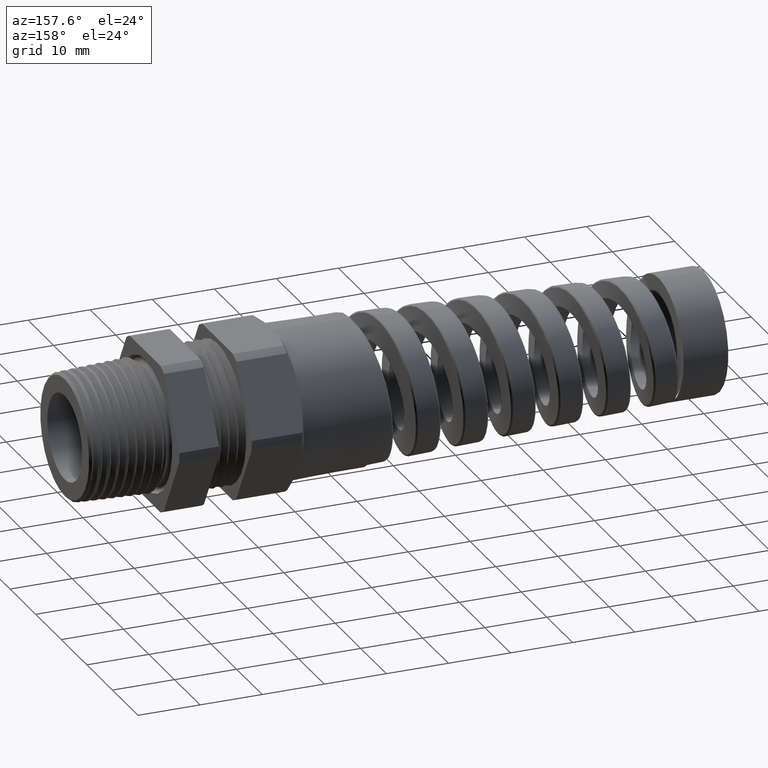
[diagram: clean part render]
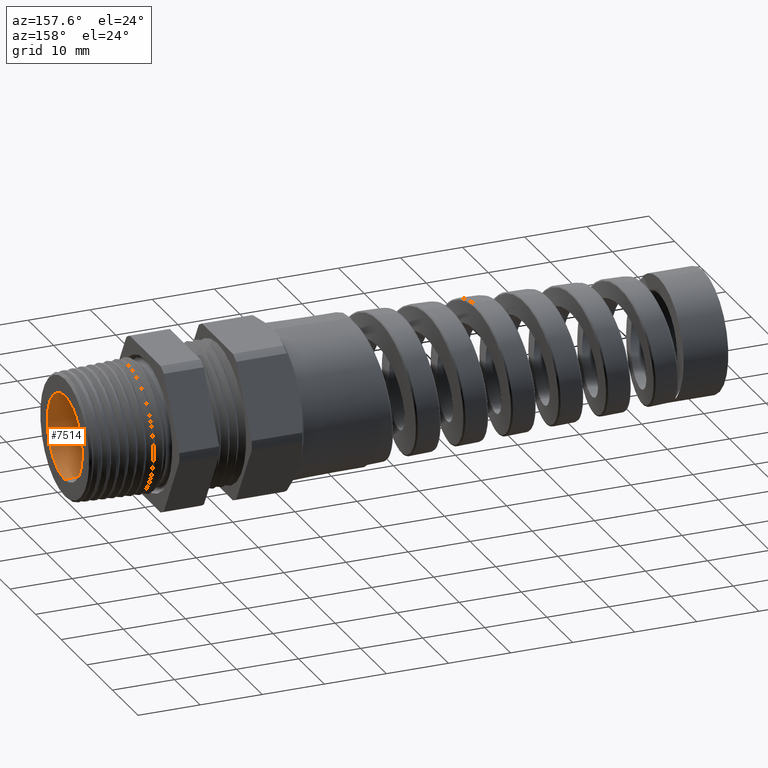
[diagram: same view with one face highlighted and labeled with its STEP entity id]
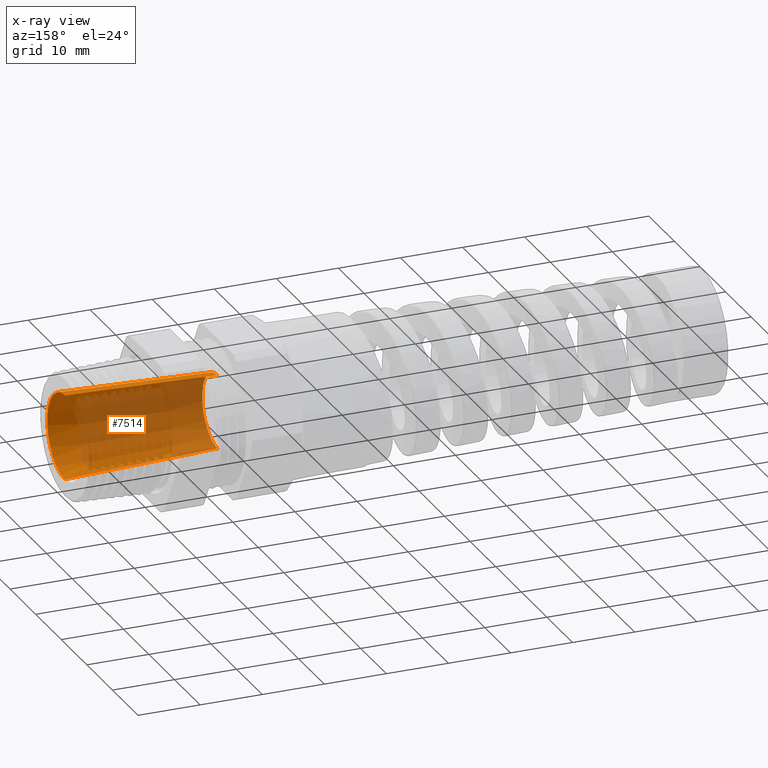
[diagram: x-ray of the same camera — body ghosted, the highlighted face saturated]
A machine part, auxiliary view. The second image highlights one B-rep face of the part: STEP entity #7514.
The next image is the same camera in x-ray: the body ghosted, the highlighted face saturated — about 72% of this face is hidden behind the body in this view.
In plain terms, the highlighted conical surface has half-angle 2 deg.
Its self-contained STEP definition (entity closure, byte-faithful):
#7502 = EDGE_CURVE ( 'NONE', #7522, #7503, #10307, .T. ) ;
#7503 = VERTEX_POINT ( 'NONE', #10298 ) ;
#7504 = ORIENTED_EDGE ( 'NONE', *, *, #7502, .F. ) ;
#7505 = ORIENTED_EDGE ( 'NONE', *, *, #7510, .F. ) ;
#7510 = EDGE_CURVE ( 'NONE', #7503, #7511, #10356, .T. ) ;
#7511 = VERTEX_POINT ( 'NONE', #10352 ) ;
#7513 = EDGE_LOOP ( 'NONE', ( #7516, #7517, #7505, #7504 ) ) ;
#7514 = ADVANCED_FACE ( 'NONE', ( #10351 ), #10349, .F. ) ;
#7515 = EDGE_CURVE ( 'NONE', #7521, #7511, #10345, .T. ) ;
#7516 = ORIENTED_EDGE ( 'NONE', *, *, #7535, .T. ) ;
#7517 = ORIENTED_EDGE ( 'NONE', *, *, #7515, .T. ) ;
#7521 = VERTEX_POINT ( 'NONE', #10341 ) ;
#7522 = VERTEX_POINT ( 'NONE', #10340 ) ;
#7535 = EDGE_CURVE ( 'NONE', #7522, #7521, #10383, .T. ) ;
#10297 = CARTESIAN_POINT ( 'NONE',  ( 0.5100000000000000100, 0.0000000000000000000, 0.0000000000000000000 ) ) ;
#10298 = CARTESIAN_POINT ( 'NONE',  ( 0.5100000000000000100, 0.0000000000000000000, -0.2688440457657528800 ) ) ;
#10299 = DIRECTION ( 'NONE',  ( 0.9993908270190957600, 0.0000000000000000000, -0.03489949670250170500 ) ) ;
#10300 = VECTOR ( 'NONE', #10299, 39.37007874015748900 ) ;
#10301 = CARTESIAN_POINT ( 'NONE',  ( -0.4591666666666666700, 0.0000000000000000000, -0.2349999999999999900 ) ) ;
#10307 = LINE ( 'NONE', #10301, #10300 ) ;
#10340 = CARTESIAN_POINT ( 'NONE',  ( -0.4591666666666666700, 0.0000000000000000000, -0.2349999999999999900 ) ) ;
#10341 = CARTESIAN_POINT ( 'NONE',  ( -0.4591666666666666700, 3.085154989582409200E-017, 0.2349999999999999900 ) ) ;
#10342 = DIRECTION ( 'NONE',  ( 0.9993908270190957600, 4.273955692857231900E-018, 0.03489949670250170500 ) ) ;
#10343 = VECTOR ( 'NONE', #10342, 39.37007874015748900 ) ;
#10344 = CARTESIAN_POINT ( 'NONE',  ( -0.4591666666666666700, 2.877919977996279800E-017, 0.2349999999999999900 ) ) ;
#10345 = LINE ( 'NONE', #10344, #10343 ) ;
#10346 = DIRECTION ( 'NONE',  ( 0.0000000000000000000, 0.0000000000000000000, -1.000000000000000000 ) ) ;
#10347 = DIRECTION ( 'NONE',  ( 1.000000000000000000, 0.0000000000000000000, 0.0000000000000000000 ) ) ;
#10348 = AXIS2_PLACEMENT_3D ( 'NONE', #10350, #10347, #10346 ) ;
#10349 = CONICAL_SURFACE ( 'NONE', #10348, 0.2349999999999999900, 0.03490658503988732600 ) ;
#10350 = CARTESIAN_POINT ( 'NONE',  ( -0.4591666666666666700, 0.0000000000000000000, 0.0000000000000000000 ) ) ;
#10351 = FACE_OUTER_BOUND ( 'NONE', #7513, .T. ) ;
#10352 = CARTESIAN_POINT ( 'NONE',  ( 0.5100000000000000100, 3.292390001168538500E-017, 0.2688440457657528800 ) ) ;
#10353 = DIRECTION ( 'NONE',  ( 0.0000000000000000000, 0.0000000000000000000, 1.000000000000000000 ) ) ;
#10354 = DIRECTION ( 'NONE',  ( -1.000000000000000000, 0.0000000000000000000, 0.0000000000000000000 ) ) ;
#10355 = AXIS2_PLACEMENT_3D ( 'NONE', #10297, #10354, #10353 ) ;
#10356 = CIRCLE ( 'NONE', #10355, 0.2688440457657528800 ) ;
#10380 = DIRECTION ( 'NONE',  ( 0.0000000000000000000, 0.0000000000000000000, 1.000000000000000000 ) ) ;
#10381 = DIRECTION ( 'NONE',  ( -1.000000000000000000, 0.0000000000000000000, 0.0000000000000000000 ) ) ;
#10382 = AXIS2_PLACEMENT_3D ( 'NONE', #10388, #10381, #10380 ) ;
#10383 = CIRCLE ( 'NONE', #10382, 0.2349999999999999900 ) ;
#10388 = CARTESIAN_POINT ( 'NONE',  ( -0.4591666666666666700, 0.0000000000000000000, 0.0000000000000000000 ) ) ;